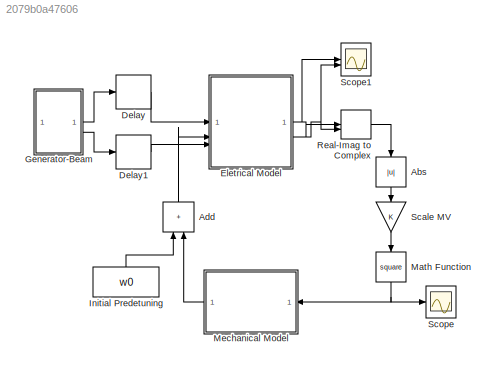
MODEL slx_2079b0a47606
KIND model
CONFIG AbsTol = auto
CONFIG EnableMultiTasking = off
CONFIG FixedStep = auto
CONFIG MaxStep = auto
CONFIG MinStep = auto
CONFIG RelTol = 1e-3
CONFIG SampleTimeConstraint = Unconstrained
CONFIG SolverName = VariableStepAuto
CONFIG StartTime = 0.0
CONFIG StopTime = 100
WORKSPACE source: mxarray member
WORKSPACE KL1: Simulink.Parameter (value not decoded)
WORKSPACE KL2: Simulink.Parameter (value not decoded)
WORKSPACE KL3: Simulink.Parameter (value not decoded)
WORKSPACE QL: Simulink.Parameter (value not decoded)
WORKSPACE Q_k1: Simulink.Parameter (value not decoded)
WORKSPACE Q_k2: Simulink.Parameter (value not decoded)
WORKSPACE Q_k3: Simulink.Parameter (value not decoded)
WORKSPACE RL: Simulink.Parameter (value not decoded)
WORKSPACE RQ: Simulink.Parameter (value not decoded)
WORKSPACE Ts: Simulink.Parameter (value not decoded)
WORKSPACE a0: Simulink.Parameter (value not decoded)
WORKSPACE a1: Simulink.Parameter (value not decoded)
WORKSPACE a2: Simulink.Parameter (value not decoded)
WORKSPACE b0: Simulink.Parameter (value not decoded)
WORKSPACE b1: Simulink.Parameter (value not decoded)
WORKSPACE b2: Simulink.Parameter (value not decoded)
WORKSPACE f0: Simulink.Parameter (value not decoded)
WORKSPACE f_k1: Simulink.Parameter (value not decoded)
WORKSPACE f_k2: Simulink.Parameter (value not decoded)
WORKSPACE f_k3: Simulink.Parameter (value not decoded)
WORKSPACE pi: Simulink.Parameter (value not decoded)
WORKSPACE w0: Simulink.Parameter (value not decoded)
WORKSPACE w_hbw: Simulink.Parameter (value not decoded)
BLOCK [Abs] Abs
  NameLocation = left
  SaturateOnIntegerOverflow = off
BLOCK [Sum] Add
  IconShape = rectangular
  NameLocation = right
BLOCK [Delay] Delay
  DelayLength = 1
  InitialCondition = 0
  InputPortMap = u0
BLOCK [Delay] Delay1
  DelayLength = 1
  InitialCondition = 0
  InputPortMap = u0
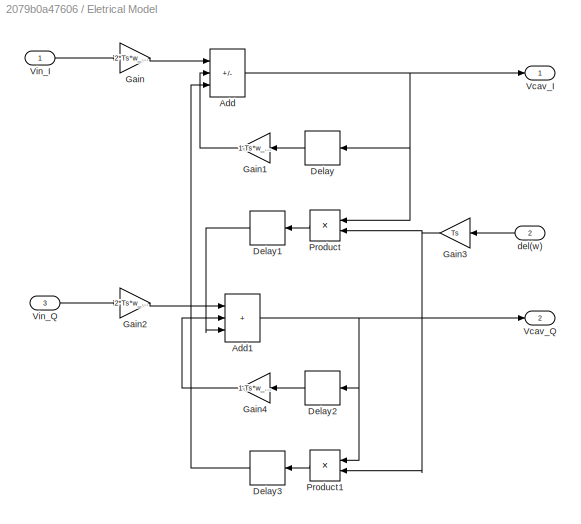
BLOCK [SubSystem] Eletrical Model
BLOCK [Sum] Eletrical Model/Add
  IconShape = rectangular
  Inputs = ++-
BLOCK [Sum] Eletrical Model/Add1
  IconShape = rectangular
  Inputs = +++
BLOCK [Delay] Eletrical Model/Delay
  DelayLength = 1
  InitialCondition = 0
  InputPortMap = u0
BLOCK [Delay] Eletrical Model/Delay1
  DelayLength = 1
  InitialCondition = 0
  InputPortMap = u0
BLOCK [Delay] Eletrical Model/Delay2
  DelayLength = 1
  InitialCondition = 0
  InputPortMap = u0
BLOCK [Delay] Eletrical Model/Delay3
  DelayLength = 1
  InitialCondition = 0
  InputPortMap = u0
BLOCK [Gain] Eletrical Model/Gain
  Gain = 2*Ts*w_hbw*RL
BLOCK [Gain] Eletrical Model/Gain1
  Gain = 1-Ts*w_hbw
BLOCK [Gain] Eletrical Model/Gain2
  Gain = 2*Ts*w_hbw*RL
BLOCK [Gain] Eletrical Model/Gain3
  Gain = Ts
BLOCK [Gain] Eletrical Model/Gain4
  Gain = 1-Ts*w_hbw
BLOCK [Product] Eletrical Model/Product
BLOCK [Product] Eletrical Model/Product1
BLOCK [Outport] Eletrical Model/Vcav_I
BLOCK [Outport] Eletrical Model/Vcav_Q
  Port = 2
BLOCK [Inport] Eletrical Model/Vin_I
BLOCK [Inport] Eletrical Model/Vin_Q
  Port = 3
BLOCK [Inport] Eletrical Model/del(w)
  Port = 2
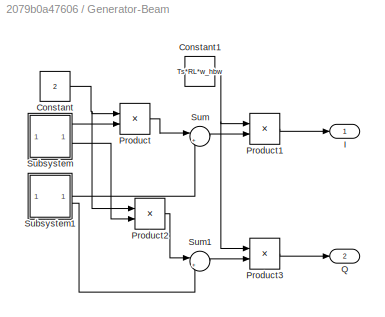
BLOCK [SubSystem] Generator-Beam
BLOCK [Constant] Generator-Beam/Constant
  Value = 2
BLOCK [Constant] Generator-Beam/Constant1
  Value = Ts*RL*w_hbw
BLOCK [Outport] Generator-Beam/I
BLOCK [Product] Generator-Beam/Product
BLOCK [Product] Generator-Beam/Product1
BLOCK [Product] Generator-Beam/Product2
BLOCK [Product] Generator-Beam/Product3
BLOCK [Outport] Generator-Beam/Q
  Port = 2
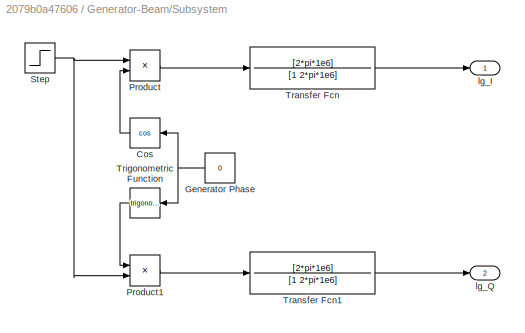
BLOCK [SubSystem] Generator-Beam/Subsystem
BLOCK [Trigonometry] Generator-Beam/Subsystem/Cos
  Operator = cos
BLOCK [Constant] Generator-Beam/Subsystem/Generator Phase
  Value = 0
BLOCK [Product] Generator-Beam/Subsystem/Product
BLOCK [Product] Generator-Beam/Subsystem/Product1
BLOCK [Step] Generator-Beam/Subsystem/Step
  SampleTime = 0
BLOCK [TransferFcn] Generator-Beam/Subsystem/Transfer Fcn
  Denominator = [1 2*pi*1e6]
  Numerator = [2*pi*1e6]
BLOCK [TransferFcn] Generator-Beam/Subsystem/Transfer Fcn1
  Denominator = [1 2*pi*1e6]
  Numerator = [2*pi*1e6]
BLOCK [Trigonometry] Generator-Beam/Subsystem/Trigonometric Function
BLOCK [Outport] Generator-Beam/Subsystem/lg_I
BLOCK [Outport] Generator-Beam/Subsystem/lg_Q
  Port = 2
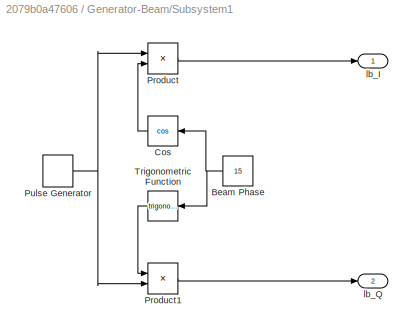
BLOCK [SubSystem] Generator-Beam/Subsystem1
BLOCK [Constant] Generator-Beam/Subsystem1/Beam Phase
  Value = 15
BLOCK [Trigonometry] Generator-Beam/Subsystem1/Cos
  Operator = cos
BLOCK [Product] Generator-Beam/Subsystem1/Product
BLOCK [Product] Generator-Beam/Subsystem1/Product1
BLOCK [DiscretePulseGenerator] Generator-Beam/Subsystem1/Pulse Generator
  Period = 0.04
  PulseType = Time based
  PulseWidth = 5
BLOCK [Trigonometry] Generator-Beam/Subsystem1/Trigonometric Function
BLOCK [Outport] Generator-Beam/Subsystem1/lb_I
BLOCK [Outport] Generator-Beam/Subsystem1/lb_Q
  Port = 2
BLOCK [Sum] Generator-Beam/Sum
  Inputs = |+-
BLOCK [Sum] Generator-Beam/Sum1
  Inputs = |+-
BLOCK [Constant] Initial Predetuning
  NameLocation = right
  Value = w0
BLOCK [Math] Math Function
  NameLocation = left
  Operator = square
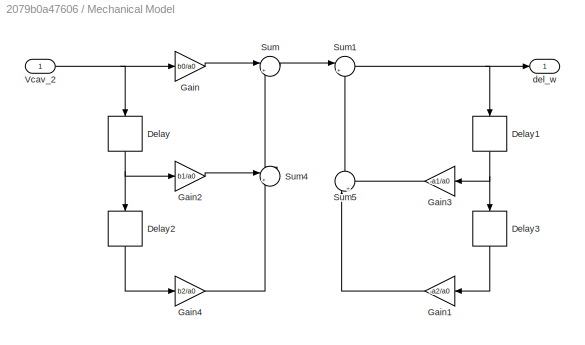
BLOCK [SubSystem] Mechanical Model
BLOCK [Delay] Mechanical Model/Delay
  DelayLength = 1
  InitialCondition = 0
  InputPortMap = u0
  NameLocation = left
BLOCK [Delay] Mechanical Model/Delay1
  DelayLength = 1
  InitialCondition = 0
  InputPortMap = u0
  NameLocation = left
BLOCK [Delay] Mechanical Model/Delay2
  DelayLength = 1
  InitialCondition = 0
  InputPortMap = u0
  NameLocation = left
BLOCK [Delay] Mechanical Model/Delay3
  DelayLength = 1
  InitialCondition = 0
  InputPortMap = u0
  NameLocation = left
BLOCK [Gain] Mechanical Model/Gain
  Gain = b0/a0
BLOCK [Gain] Mechanical Model/Gain1
  Gain = -a2/a0
BLOCK [Gain] Mechanical Model/Gain2
  Gain = b1/a0
BLOCK [Gain] Mechanical Model/Gain3
  Gain = -a1/a0
BLOCK [Gain] Mechanical Model/Gain4
  Gain = b2/a0
BLOCK [Sum] Mechanical Model/Sum
  Inputs = |++
BLOCK [Sum] Mechanical Model/Sum1
  Inputs = |++
BLOCK [Sum] Mechanical Model/Sum4
  Inputs = |++
BLOCK [Sum] Mechanical Model/Sum5
  Inputs = |++
  NameLocation = right
BLOCK [Inport] Mechanical Model/Vcav_2
BLOCK [Outport] Mechanical Model/del_w
BLOCK [RealImagToComplex] Real-Imag to Complex
BLOCK [Gain] Scale MV
  NameLocation = left
BLOCK [Scope] Scope
  Floating = off
  NumInputPorts = 1
  ScopeSpecificationString = Simulink.scopes.TimeScopeBlockCfg('CurrentConfiguration', extmgr.ConfigurationSet(extmgr.Configuration('Core','General UI',true),extmgr.Configuration('Core','Source UI',true),extmgr.Configuration('Sources','WiredSimulink',true),extmgr.Configuration('Visuals','Time Domain',true,'SerializedDisplays',{struct('MinYLimReal','-495477432427.97235','MaxYLimReal','4459296891851.75195','YLabelReal','','MinY...<+1448ch>
BLOCK [Scope] Scope1
  Floating = off
  NumInputPorts = 2
  ScopeSpecificationString = Simulink.scopes.TimeScopeBlockCfg('CurrentConfiguration', extmgr.ConfigurationSet(extmgr.Configuration('Core','General UI',true),extmgr.Configuration('Core','Source UI',true),extmgr.Configuration('Sources','WiredSimulink',true,'DataLoggingVariableName','ScopeData1'),extmgr.Configuration('Visuals','Time Domain',true,'SerializedDisplays',{struct('MinYLimReal','-2153848.78604','MaxYLimReal','251005.7...<+1463ch>
LINE Abs:1 -> Scale MV:1
LINE Add:1 -> Eletrical Model:2
LINE Delay1:1 -> Eletrical Model:3
LINE Delay:1 -> Eletrical Model:1
NET Eletrical Model/Add1:1 -> Eletrical Model/Delay2:1, Eletrical Model/Product1:1, Eletrical Model/Vcav_Q:1
NET Eletrical Model/Add:1 -> Eletrical Model/Delay:1, Eletrical Model/Product:1, Eletrical Model/Vcav_I:1
LINE Eletrical Model/Delay1:1 -> Eletrical Model/Add1:3
LINE Eletrical Model/Delay2:1 -> Eletrical Model/Gain4:1
LINE Eletrical Model/Delay3:1 -> Eletrical Model/Add:3
LINE Eletrical Model/Delay:1 -> Eletrical Model/Gain1:1
LINE Eletrical Model/Gain1:1 -> Eletrical Model/Add:2
LINE Eletrical Model/Gain2:1 -> Eletrical Model/Add1:1
NET Eletrical Model/Gain3:1 -> Eletrical Model/Product1:2, Eletrical Model/Product:2
LINE Eletrical Model/Gain4:1 -> Eletrical Model/Add1:2
LINE Eletrical Model/Gain:1 -> Eletrical Model/Add:1
LINE Eletrical Model/Product1:1 -> Eletrical Model/Delay3:1
LINE Eletrical Model/Product:1 -> Eletrical Model/Delay1:1
LINE Eletrical Model/Vin_I:1 -> Eletrical Model/Gain:1
LINE Eletrical Model/Vin_Q:1 -> Eletrical Model/Gain2:1
LINE Eletrical Model/del(w):1 -> Eletrical Model/Gain3:1
NET Eletrical Model:1 -> Real-Imag to Complex:1, Scope1:1
NET Eletrical Model:2 -> Real-Imag to Complex:2, Scope1:2
NET Generator-Beam/Constant1:1 -> Generator-Beam/Product1:1, Generator-Beam/Product3:1
NET Generator-Beam/Constant:1 -> Generator-Beam/Product2:1, Generator-Beam/Product:1
LINE Generator-Beam/Product1:1 -> Generator-Beam/I:1
LINE Generator-Beam/Product2:1 -> Generator-Beam/Sum1:1
LINE Generator-Beam/Product3:1 -> Generator-Beam/Q:1
LINE Generator-Beam/Product:1 -> Generator-Beam/Sum:1
LINE Generator-Beam/Subsystem/Cos:1 -> Generator-Beam/Subsystem/Product:2
NET Generator-Beam/Subsystem/Generator Phase:1 -> Generator-Beam/Subsystem/Cos:1, Generator-Beam/Subsystem/Trigonometric Function:1
LINE Generator-Beam/Subsystem/Product1:1 -> Generator-Beam/Subsystem/Transfer Fcn1:1
LINE Generator-Beam/Subsystem/Product:1 -> Generator-Beam/Subsystem/Transfer Fcn:1
NET Generator-Beam/Subsystem/Step:1 -> Generator-Beam/Subsystem/Product1:2, Generator-Beam/Subsystem/Product:1
LINE Generator-Beam/Subsystem/Transfer Fcn1:1 -> Generator-Beam/Subsystem/lg_Q:1
LINE Generator-Beam/Subsystem/Transfer Fcn:1 -> Generator-Beam/Subsystem/lg_I:1
LINE Generator-Beam/Subsystem/Trigonometric Function:1 -> Generator-Beam/Subsystem/Product1:1
NET Generator-Beam/Subsystem1/Beam Phase:1 -> Generator-Beam/Subsystem1/Cos:1, Generator-Beam/Subsystem1/Trigonometric Function:1
LINE Generator-Beam/Subsystem1/Cos:1 -> Generator-Beam/Subsystem1/Product:2
LINE Generator-Beam/Subsystem1/Product1:1 -> Generator-Beam/Subsystem1/lb_Q:1
LINE Generator-Beam/Subsystem1/Product:1 -> Generator-Beam/Subsystem1/lb_I:1
NET Generator-Beam/Subsystem1/Pulse Generator:1 -> Generator-Beam/Subsystem1/Product1:2, Generator-Beam/Subsystem1/Product:1
LINE Generator-Beam/Subsystem1/Trigonometric Function:1 -> Generator-Beam/Subsystem1/Product1:1
LINE Generator-Beam/Subsystem1:1 -> Generator-Beam/Sum:2
LINE Generator-Beam/Subsystem1:2 -> Generator-Beam/Sum1:2
LINE Generator-Beam/Subsystem:1 -> Generator-Beam/Product:2
LINE Generator-Beam/Subsystem:2 -> Generator-Beam/Product2:2
LINE Generator-Beam/Sum1:1 -> Generator-Beam/Product3:2
LINE Generator-Beam/Sum:1 -> Generator-Beam/Product1:2
LINE Generator-Beam:1 -> Delay:1
LINE Generator-Beam:2 -> Delay1:1
LINE Initial Predetuning:1 -> Add:1
NET Math Function:1 -> Mechanical Model:1, Scope:1
NET Mechanical Model/Delay1:1 -> Mechanical Model/Delay3:1, Mechanical Model/Gain3:1
LINE Mechanical Model/Delay2:1 -> Mechanical Model/Gain4:1
LINE Mechanical Model/Delay3:1 -> Mechanical Model/Gain1:1
NET Mechanical Model/Delay:1 -> Mechanical Model/Delay2:1, Mechanical Model/Gain2:1
LINE Mechanical Model/Gain1:1 -> Mechanical Model/Sum5:1
LINE Mechanical Model/Gain2:1 -> Mechanical Model/Sum4:1
LINE Mechanical Model/Gain3:1 -> Mechanical Model/Sum5:2
LINE Mechanical Model/Gain4:1 -> Mechanical Model/Sum4:2
LINE Mechanical Model/Gain:1 -> Mechanical Model/Sum:1
NET Mechanical Model/Sum1:1 -> Mechanical Model/Delay1:1, Mechanical Model/del_w:1
LINE Mechanical Model/Sum4:1 -> Mechanical Model/Sum:2
LINE Mechanical Model/Sum5:1 -> Mechanical Model/Sum1:2
LINE Mechanical Model/Sum:1 -> Mechanical Model/Sum1:1
NET Mechanical Model/Vcav_2:1 -> Mechanical Model/Delay:1, Mechanical Model/Gain:1
LINE Mechanical Model:1 -> Add:2
LINE Real-Imag to Complex:1 -> Abs:1
LINE Scale MV:1 -> Math Function:1
note: NET lines group one-source signal fan-out (src -> all destinations, sorted); 1:1 wires keep LINE
